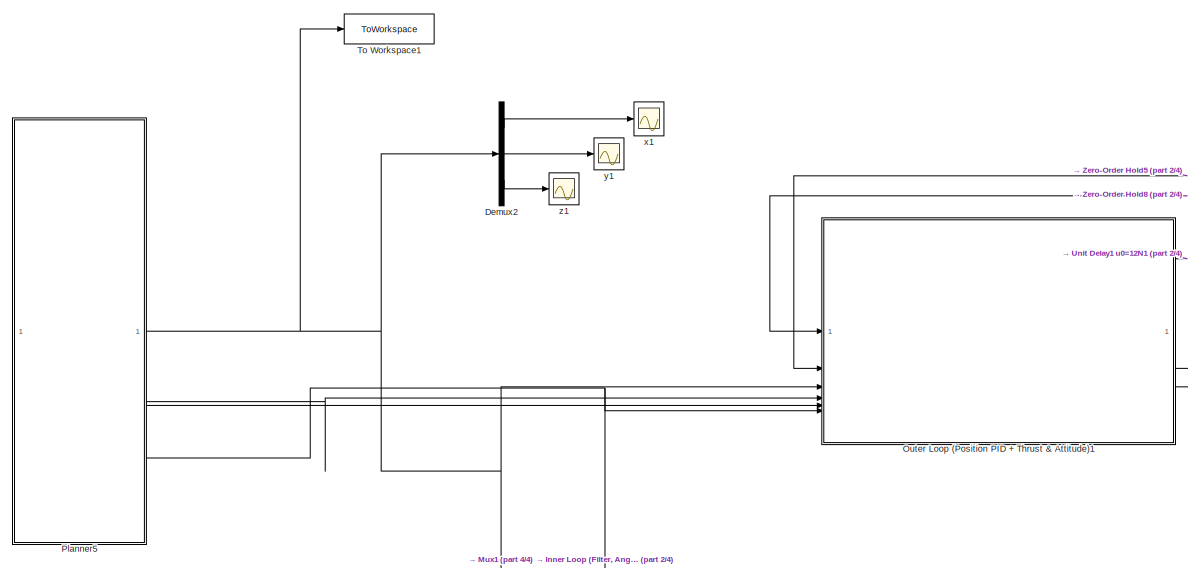
[diagram: root canvas - part 1/4, top left region]
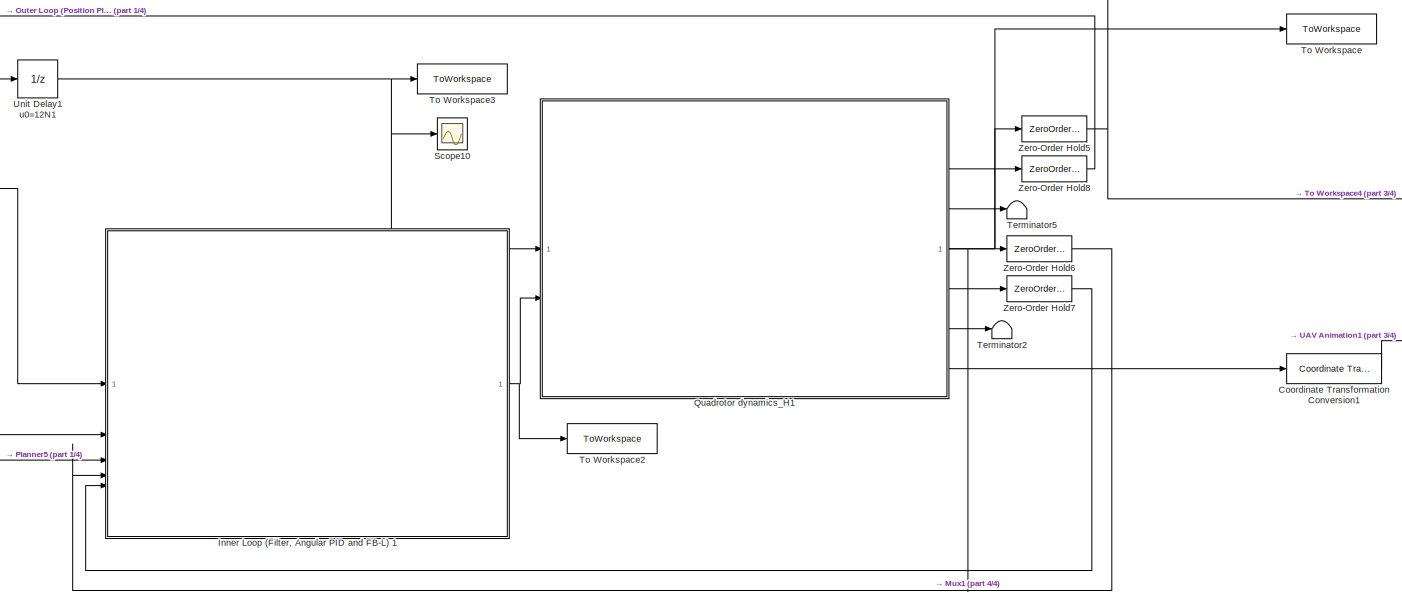
[diagram: root canvas - part 2/4, central region]
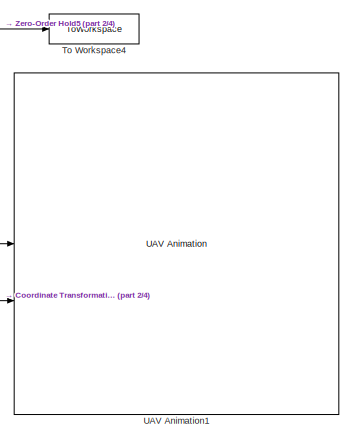
[diagram: root canvas - part 3/4, middle right region]
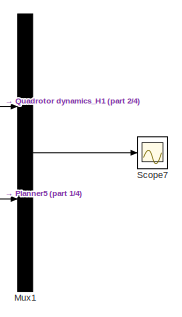
[diagram: root canvas - part 4/4, bottom right region]
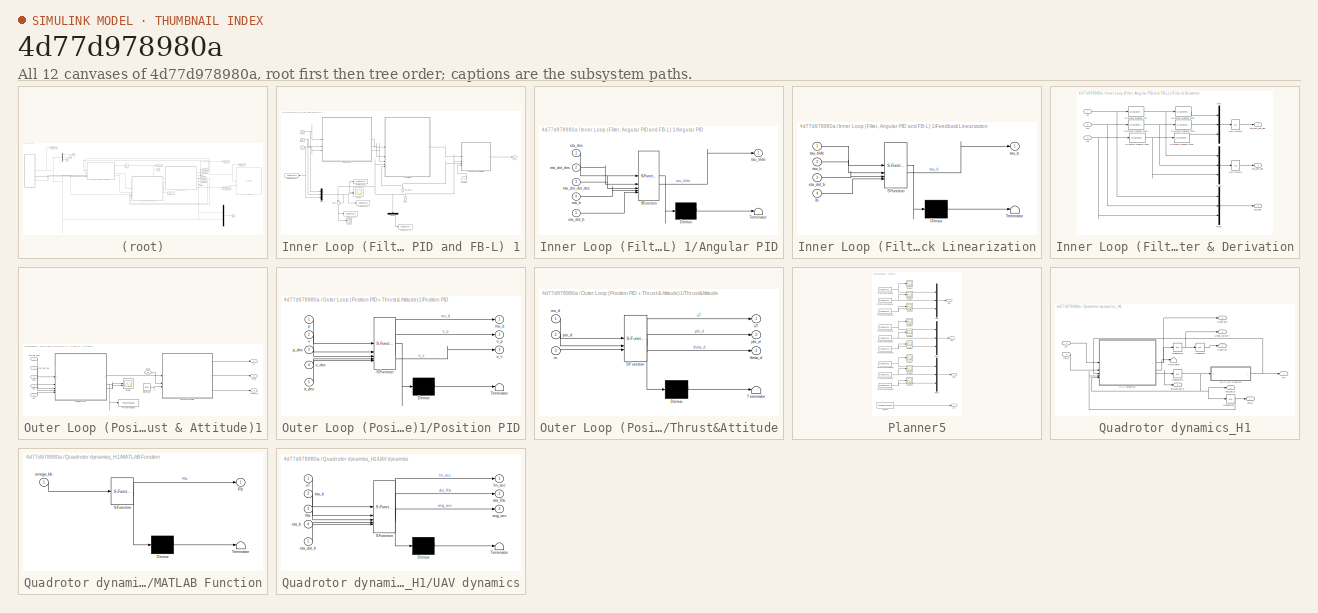
[diagram: thumbnail index - all 12 canvases of the model, root first then tree order]
MODEL slx_4d77d978980a
KIND model
CONFIG AbsTol = auto
CONFIG EnableMultiTasking = off
CONFIG FixedStep = auto
CONFIG InitFcn = %% INITIALIZATION\nrun('LOAD_HIERARCHICAL.m');\n%% UAV PARAMETERS\nmass = 0.85;\nIb = diag([2.5 2.1 4.3])*10^-2;\n%% SAMPLING TIME\nTs=0.01;\n\n\n\n
CONFIG MaxStep = auto
CONFIG MinStep = auto
CONFIG RelTol = 1e-3
CONFIG SampleTimeConstraint = Unconstrained
CONFIG SolverName = VariableStepAuto
CONFIG StartTime = 0.0
CONFIG StopTime = T
BLOCK [Reference] Coordinate Transformation Conversion1  REF=robotcorelib/Coordinate Transformation Conversion
  SourceBlock = robotcorelib/Coordinate Transformation Conversion
  SourceType = robotics.slcore.internal.block.CoordinateTransformationConversion
BLOCK [Demux] Demux2
  Outputs = 3
BLOCK [SubSystem] Inner Loop (Filter, Angular PID and FB-L) 1
BLOCK [SubSystem] Inner Loop (Filter, Angular PID and FB-L) 1/Angular PID
  ErrorFcn = Stateflow.Translate.translate
  LibrarySourceBlock = simulink/User-Defined\nFunctions/MATLAB Function
  PermitHierarchicalResolution = ExplicitOnly
  SFBlockType = MATLAB Function
  TreatAsAtomicUnit = on
BLOCK [Demux] Inner Loop (Filter, Angular PID and FB-L) 1/Angular PID/ Demux 
  Outputs = 1
BLOCK [S-Function] Inner Loop (Filter, Angular PID and FB-L) 1/Angular PID/ SFunction 
  EnableBusSupport = on
  FunctionName = sf_sfun
  PortCounts = [5 2]
  SFcnIsStateOwnerBlock = off
  SFunctionDeploymentMode = off
  Tag = Stateflow S-Function 9
BLOCK [Terminator] Inner Loop (Filter, Angular PID and FB-L) 1/Angular PID/ Terminator 
BLOCK [Inport] Inner Loop (Filter, Angular PID and FB-L) 1/Angular PID/eta_b
  Port = 4
BLOCK [Inport] Inner Loop (Filter, Angular PID and FB-L) 1/Angular PID/eta_des
BLOCK [Inport] Inner Loop (Filter, Angular PID and FB-L) 1/Angular PID/eta_dot_b
  Port = 5
BLOCK [Inport] Inner Loop (Filter, Angular PID and FB-L) 1/Angular PID/eta_dot_des
  Port = 2
BLOCK [Inport] Inner Loop (Filter, Angular PID and FB-L) 1/Angular PID/eta_dot_dot_des
  Port = 3
BLOCK [Outport] Inner Loop (Filter, Angular PID and FB-L) 1/Angular PID/tau_tilde
BLOCK [Constant] Inner Loop (Filter, Angular PID and FB-L) 1/Constant
  Value = Ib
BLOCK [Demux] Inner Loop (Filter, Angular PID and FB-L) 1/Demux
  NameLocation = left
  Outputs = 3
BLOCK [SubSystem] Inner Loop (Filter, Angular PID and FB-L) 1/Feedback Linearization
  ErrorFcn = Stateflow.Translate.translate
  LibrarySourceBlock = simulink/User-Defined\nFunctions/MATLAB Function
  PermitHierarchicalResolution = ExplicitOnly
  SFBlockType = MATLAB Function
  TreatAsAtomicUnit = on
BLOCK [Demux] Inner Loop (Filter, Angular PID and FB-L) 1/Feedback Linearization/ Demux 
  Outputs = 1
BLOCK [S-Function] Inner Loop (Filter, Angular PID and FB-L) 1/Feedback Linearization/ SFunction 
  EnableBusSupport = on
  FunctionName = sf_sfun
  PortCounts = [4 2]
  SFcnIsStateOwnerBlock = off
  SFunctionDeploymentMode = off
  Tag = Stateflow S-Function 10
BLOCK [Terminator] Inner Loop (Filter, Angular PID and FB-L) 1/Feedback Linearization/ Terminator 
BLOCK [Inport] Inner Loop (Filter, Angular PID and FB-L) 1/Feedback Linearization/Ib
  Port = 4
BLOCK [Inport] Inner Loop (Filter, Angular PID and FB-L) 1/Feedback Linearization/eta_b
  Port = 2
BLOCK [Inport] Inner Loop (Filter, Angular PID and FB-L) 1/Feedback Linearization/eta_dot_b
  Port = 3
BLOCK [Outport] Inner Loop (Filter, Angular PID and FB-L) 1/Feedback Linearization/tau_b
BLOCK [Inport] Inner Loop (Filter, Angular PID and FB-L) 1/Feedback Linearization/tau_tilde
BLOCK [SubSystem] Inner Loop (Filter, Angular PID and FB-L) 1/Filter & Derivation
BLOCK [DiscreteTransferFcn] Inner Loop (Filter, Angular PID and FB-L) 1/Filter & Derivation/Discrete Transfer Fcn
  Denominator = [Ts 0]
  InputPortMap = u0
  Numerator = [1 -1]
  SampleTime = Ts
BLOCK [DiscreteTransferFcn] Inner Loop (Filter, Angular PID and FB-L) 1/Filter & Derivation/Discrete Transfer Fcn1
  Denominator = [Ts 0]
  InputPortMap = u0
  Numerator = [1 -1]
  SampleTime = Ts
BLOCK [DiscreteTransferFcn] Inner Loop (Filter, Angular PID and FB-L) 1/Filter & Derivation/Discrete Transfer Fcn2
  Denominator = [Ts 0]
  InputPortMap = u0
  Numerator = [1 -1]
  SampleTime = Ts
BLOCK [DiscreteTransferFcn] Inner Loop (Filter, Angular PID and FB-L) 1/Filter & Derivation/Discrete Transfer Fcn3
  Denominator = [Ts 0]
  InputPortMap = u0
  Numerator = [1 -1]
  SampleTime = Ts
BLOCK [DiscreteTransferFcn] Inner Loop (Filter, Angular PID and FB-L) 1/Filter & Derivation/Discrete Transfer Fcn4
  Denominator = [Ts 0]
  InputPortMap = u0
  Numerator = [1 -1]
  SampleTime = Ts
BLOCK [DiscreteTransferFcn] Inner Loop (Filter, Angular PID and FB-L) 1/Filter & Derivation/Discrete Transfer Fcn5
  Denominator = [Ts 0]
  InputPortMap = u0
  Numerator = [1 -1]
  SampleTime = Ts
BLOCK [Inport] Inner Loop (Filter, Angular PID and FB-L) 1/Filter & Derivation/In1
BLOCK [Inport] Inner Loop (Filter, Angular PID and FB-L) 1/Filter & Derivation/In2
  Port = 2
BLOCK [Inport] Inner Loop (Filter, Angular PID and FB-L) 1/Filter & Derivation/In3
  Port = 3
BLOCK [Mux] Inner Loop (Filter, Angular PID and FB-L) 1/Filter & Derivation/Mux
  DisplayOption = bar
  Inputs = 3
BLOCK [Mux] Inner Loop (Filter, Angular PID and FB-L) 1/Filter & Derivation/Mux1
  DisplayOption = bar
  Inputs = 3
BLOCK [Mux] Inner Loop (Filter, Angular PID and FB-L) 1/Filter & Derivation/Mux2
  DisplayOption = bar
  Inputs = 3
BLOCK [UnitDelay] Inner Loop (Filter, Angular PID and FB-L) 1/Filter & Derivation/Unit Delay1
  InitialCondition = [0 0 0]
  NameLocation = top
  SampleTime = Ts
BLOCK [UnitDelay] Inner Loop (Filter, Angular PID and FB-L) 1/Filter & Derivation/Unit Delay2
  InitialCondition = [0 0 0]
  NameLocation = top
  SampleTime = Ts
BLOCK [Outport] Inner Loop (Filter, Angular PID and FB-L) 1/Filter & Derivation/eta_des
BLOCK [Outport] Inner Loop (Filter, Angular PID and FB-L) 1/Filter & Derivation/eta_dot_des
  Port = 2
BLOCK [Outport] Inner Loop (Filter, Angular PID and FB-L) 1/Filter & Derivation/eta_dot_dot_des
  Port = 3
BLOCK [Mux] Inner Loop (Filter, Angular PID and FB-L) 1/Mux
  DisplayOption = bar
  Inputs = 3
BLOCK [Scope] Inner Loop (Filter, Angular PID and FB-L) 1/Scope
  Floating = off
  NumInputPorts = 2
  ScopeSpecificationString = Simulink.scopes.TimeScopeBlockCfg('CurrentConfiguration', extmgr.ConfigurationSet(extmgr.Configuration('Core','General UI',true),extmgr.Configuration('Core','Source UI',true),extmgr.Configuration('Sources','WiredSimulink',true,'DataLoggingVariableName','ScopeData2'),extmgr.Configuration('Visuals','Time Domain',true,'SerializedDisplays',{struct('MinYLimReal','-1.24635','MaxYLimReal','3.98889','YLab...<+1599ch>
BLOCK [Scope] Inner Loop (Filter, Angular PID and FB-L) 1/Scope1
  Floating = off
  NumInputPorts = 1
  ScopeSpecificationString = Simulink.scopes.TimeScopeBlockCfg('CurrentConfiguration', extmgr.ConfigurationSet(extmgr.Configuration('Core','General UI',true),extmgr.Configuration('Core','Source UI',true),extmgr.Configuration('Sources','WiredSimulink',true,'DataLoggingVariableName','ScopeData1'),extmgr.Configuration('Visuals','Time Domain',true,'SerializedDisplays',{struct('MinYLimReal','-0.04771','MaxYLimReal','0.10449','YLab...<+1380ch>
BLOCK [Sum] Inner Loop (Filter, Angular PID and FB-L) 1/Sum
  Inputs = |+-
  NameLocation = left
BLOCK [ToWorkspace] Inner Loop (Filter, Angular PID and FB-L) 1/To Workspace
  FixptAsFi = on
  MaxDataPoints = inf
  SampleTime = -1
  SaveFormat = Structure With Time
  VariableName = eta_d
BLOCK [ToWorkspace] Inner Loop (Filter, Angular PID and FB-L) 1/To Workspace1
  FixptAsFi = on
  MaxDataPoints = inf
  SampleTime = -1
  SaveFormat = Structure With Time
  VariableName = eta
BLOCK [ToWorkspace] Inner Loop (Filter, Angular PID and FB-L) 1/To Workspace2
  FixptAsFi = on
  MaxDataPoints = inf
  SampleTime = -1
  SaveFormat = Structure With Time
  VariableName = err_R
BLOCK [ToWorkspace] Inner Loop (Filter, Angular PID and FB-L) 1/To Workspace3
  FixptAsFi = on
  MaxDataPoints = inf
  SampleTime = -1
  SaveFormat = Structure With Time
  VariableName = psi
BLOCK [ToWorkspace] Inner Loop (Filter, Angular PID and FB-L) 1/To Workspace4
  FixptAsFi = on
  MaxDataPoints = inf
  NameLocation = top
  SampleTime = -1
  SaveFormat = Structure With Time
  VariableName = psi_d
BLOCK [Inport] Inner Loop (Filter, Angular PID and FB-L) 1/eta_b
  NameLocation = right
  Port = 4
BLOCK [Inport] Inner Loop (Filter, Angular PID and FB-L) 1/eta_dot_b
  NameLocation = right
  Port = 5
BLOCK [Inport] Inner Loop (Filter, Angular PID and FB-L) 1/phi_d
BLOCK [Inport] Inner Loop (Filter, Angular PID and FB-L) 1/psi_d
  Port = 3
BLOCK [Outport] Inner Loop (Filter, Angular PID and FB-L) 1/tau_b
BLOCK [Inport] Inner Loop (Filter, Angular PID and FB-L) 1/theta_d
  Port = 2
BLOCK [Mux] Mux1
  DisplayOption = bar
  Inputs = 2
BLOCK [SubSystem] Outer Loop (Position PID + Thrust & Attitude)1
BLOCK [Constant] Outer Loop (Position PID + Thrust & Attitude)1/Constant
  Value = mass
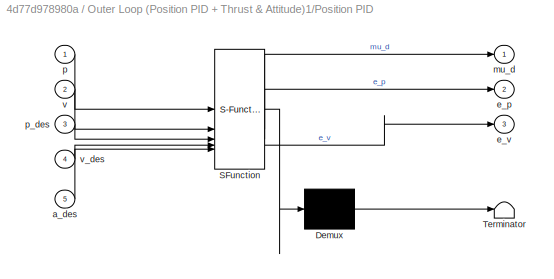
BLOCK [SubSystem] Outer Loop (Position PID + Thrust & Attitude)1/Position PID
  ErrorFcn = Stateflow.Translate.translate
  LibrarySourceBlock = simulink/User-Defined\nFunctions/MATLAB Function
  PermitHierarchicalResolution = ExplicitOnly
  SFBlockType = MATLAB Function
  TreatAsAtomicUnit = on
BLOCK [Demux] Outer Loop (Position PID + Thrust & Attitude)1/Position PID/ Demux 
  Outputs = 1
BLOCK [S-Function] Outer Loop (Position PID + Thrust & Attitude)1/Position PID/ SFunction 
  EnableBusSupport = on
  FunctionName = sf_sfun
  PortCounts = [5 4]
  SFcnIsStateOwnerBlock = off
  SFunctionDeploymentMode = off
  Tag = Stateflow S-Function 11
BLOCK [Terminator] Outer Loop (Position PID + Thrust & Attitude)1/Position PID/ Terminator 
BLOCK [Inport] Outer Loop (Position PID + Thrust & Attitude)1/Position PID/a_des
  Port = 5
BLOCK [Outport] Outer Loop (Position PID + Thrust & Attitude)1/Position PID/e_p
  Port = 2
BLOCK [Outport] Outer Loop (Position PID + Thrust & Attitude)1/Position PID/e_v
  Port = 3
BLOCK [Outport] Outer Loop (Position PID + Thrust & Attitude)1/Position PID/mu_d
BLOCK [Inport] Outer Loop (Position PID + Thrust & Attitude)1/Position PID/p
BLOCK [Inport] Outer Loop (Position PID + Thrust & Attitude)1/Position PID/p_des
  Port = 3
BLOCK [Inport] Outer Loop (Position PID + Thrust & Attitude)1/Position PID/v
  Port = 2
BLOCK [Inport] Outer Loop (Position PID + Thrust & Attitude)1/Position PID/v_des
  Port = 4
BLOCK [Scope] Outer Loop (Position PID + Thrust & Attitude)1/Scope
  Floating = off
  NumInputPorts = 2
  ScopeSpecificationString = Simulink.scopes.TimeScopeBlockCfg('CurrentConfiguration', extmgr.ConfigurationSet(extmgr.Configuration('Core','General UI',true),extmgr.Configuration('Core','Source UI',true),extmgr.Configuration('Sources','WiredSimulink',true,'DataLoggingVariableName','ScopeData11'),extmgr.Configuration('Visuals','Time Domain',true,'SerializedDisplays',{struct('MinYLimReal','-2.46','MaxYLimReal','1.69194','YLabel...<+1656ch>
BLOCK [SubSystem] Outer Loop (Position PID + Thrust & Attitude)1/Thrust&Attitude
  ErrorFcn = Stateflow.Translate.translate
  LibrarySourceBlock = simulink/User-Defined\nFunctions/MATLAB Function
  PermitHierarchicalResolution = ExplicitOnly
  SFBlockType = MATLAB Function
  TreatAsAtomicUnit = on
BLOCK [Demux] Outer Loop (Position PID + Thrust & Attitude)1/Thrust&Attitude/ Demux 
  Outputs = 1
BLOCK [S-Function] Outer Loop (Position PID + Thrust & Attitude)1/Thrust&Attitude/ SFunction 
  EnableBusSupport = on
  FunctionName = sf_sfun
  PortCounts = [3 4]
  SFcnIsStateOwnerBlock = off
  SFunctionDeploymentMode = off
  Tag = Stateflow S-Function 12
BLOCK [Terminator] Outer Loop (Position PID + Thrust & Attitude)1/Thrust&Attitude/ Terminator 
BLOCK [Inport] Outer Loop (Position PID + Thrust & Attitude)1/Thrust&Attitude/m
  Port = 3
BLOCK [Inport] Outer Loop (Position PID + Thrust & Attitude)1/Thrust&Attitude/mu_d
BLOCK [Outport] Outer Loop (Position PID + Thrust & Attitude)1/Thrust&Attitude/phi_d
  Port = 2
BLOCK [Inport] Outer Loop (Position PID + Thrust & Attitude)1/Thrust&Attitude/psi_d
  Port = 2
BLOCK [Outport] Outer Loop (Position PID + Thrust & Attitude)1/Thrust&Attitude/theta_d
  Port = 3
BLOCK [Outport] Outer Loop (Position PID + Thrust & Attitude)1/Thrust&Attitude/uT
BLOCK [ToWorkspace] Outer Loop (Position PID + Thrust & Attitude)1/To Workspace
  FixptAsFi = on
  MaxDataPoints = inf
  SampleTime = -1
  SaveFormat = Structure With Time
  VariableName = err_p
BLOCK [Inport] Outer Loop (Position PID + Thrust & Attitude)1/acc
  Port = 5
BLOCK [Inport] Outer Loop (Position PID + Thrust & Attitude)1/current_pos
  Port = 2
BLOCK [Inport] Outer Loop (Position PID + Thrust & Attitude)1/current_vel
BLOCK [Outport] Outer Loop (Position PID + Thrust & Attitude)1/phi_d
  Port = 2
BLOCK [Inport] Outer Loop (Position PID + Thrust & Attitude)1/pos
  Port = 3
BLOCK [Inport] Outer Loop (Position PID + Thrust & Attitude)1/psi_d
  Port = 6
BLOCK [Outport] Outer Loop (Position PID + Thrust & Attitude)1/theta_d
  Port = 3
BLOCK [Outport] Outer Loop (Position PID + Thrust & Attitude)1/uT
BLOCK [Inport] Outer Loop (Position PID + Thrust & Attitude)1/vel
  Port = 4
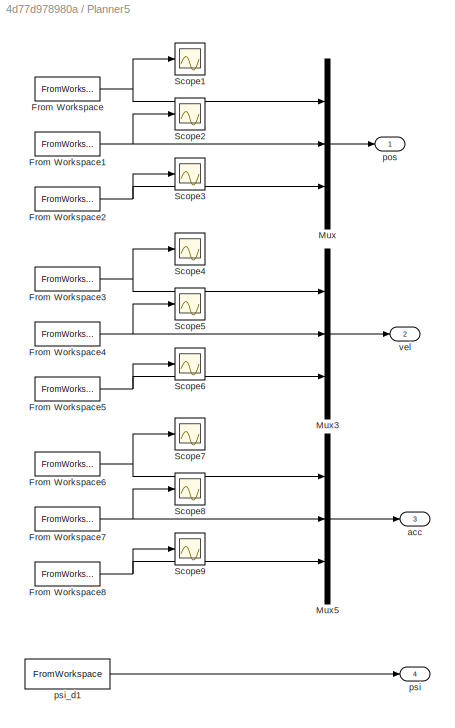
BLOCK [SubSystem] Planner5
BLOCK [FromWorkspace] Planner5/From Workspace
  VariableName = [new_tt' xx_new']
BLOCK [FromWorkspace] Planner5/From Workspace1
  VariableName = [new_tt' yy_new']
BLOCK [FromWorkspace] Planner5/From Workspace2
  VariableName = [new_tt' zz_new']
BLOCK [FromWorkspace] Planner5/From Workspace3
  VariableName = [new_tt' xv_new']
BLOCK [FromWorkspace] Planner5/From Workspace4
  VariableName = [new_tt' yv_new']
BLOCK [FromWorkspace] Planner5/From Workspace5
  VariableName = [new_tt' zv_new']
BLOCK [FromWorkspace] Planner5/From Workspace6
  VariableName = [new_tt' xa_new']
BLOCK [FromWorkspace] Planner5/From Workspace7
  VariableName = [new_tt' ya_new']
BLOCK [FromWorkspace] Planner5/From Workspace8
  VariableName = [new_tt' za_new']
BLOCK [Mux] Planner5/Mux
  DisplayOption = bar
  Inputs = 3
BLOCK [Mux] Planner5/Mux3
  DisplayOption = bar
  Inputs = 3
BLOCK [Mux] Planner5/Mux5
  DisplayOption = bar
  Inputs = 3
BLOCK [Scope] Planner5/Scope1
  Floating = off
  NumInputPorts = 1
  ScopeSpecificationString = Simulink.scopes.TimeScopeBlockCfg('CurrentConfiguration', extmgr.ConfigurationSet(extmgr.Configuration('Core','General UI',true),extmgr.Configuration('Core','Source UI',true),extmgr.Configuration('Sources','WiredSimulink',true,'DataLoggingVariableName','ScopeData1'),extmgr.Configuration('Visuals','Time Domain',true,'SerializedDisplays',{struct('MinYLimReal','-7.8746','MaxYLimReal','11.99382','YLab...<+1375ch>
BLOCK [Scope] Planner5/Scope2
  Floating = off
  NumInputPorts = 1
  ScopeSpecificationString = Simulink.scopes.TimeScopeBlockCfg('CurrentConfiguration', extmgr.ConfigurationSet(extmgr.Configuration('Core','General UI',true),extmgr.Configuration('Core','Source UI',true),extmgr.Configuration('Sources','WiredSimulink',true,'DataLoggingVariableName','ScopeData2'),extmgr.Configuration('Visuals','Time Domain',true,'SerializedDisplays',{struct('MinYLimReal','-7.8746','MaxYLimReal','11.99382','YLab...<+1375ch>
BLOCK [Scope] Planner5/Scope3
  Floating = off
  NumInputPorts = 1
  ScopeSpecificationString = Simulink.scopes.TimeScopeBlockCfg('CurrentConfiguration', extmgr.ConfigurationSet(extmgr.Configuration('Core','General UI',true),extmgr.Configuration('Core','Source UI',true),extmgr.Configuration('Sources','WiredSimulink',true,'DataLoggingVariableName','ScopeData3'),extmgr.Configuration('Visuals','Time Domain',true,'SerializedDisplays',{struct('MinYLimReal','-7.8746','MaxYLimReal','11.99382','YLab...<+1375ch>
BLOCK [Scope] Planner5/Scope4
  Floating = off
  NumInputPorts = 1
  ScopeSpecificationString = Simulink.scopes.TimeScopeBlockCfg('CurrentConfiguration', extmgr.ConfigurationSet(extmgr.Configuration('Core','General UI',true),extmgr.Configuration('Core','Source UI',true),extmgr.Configuration('Sources','WiredSimulink',true,'DataLoggingVariableName','ScopeData4'),extmgr.Configuration('Visuals','Time Domain',true,'SerializedDisplays',{struct('MinYLimReal','-7.8746','MaxYLimReal','11.99382','YLab...<+1375ch>
BLOCK [Scope] Planner5/Scope5
  Floating = off
  NumInputPorts = 1
  ScopeSpecificationString = Simulink.scopes.TimeScopeBlockCfg('CurrentConfiguration', extmgr.ConfigurationSet(extmgr.Configuration('Core','General UI',true),extmgr.Configuration('Core','Source UI',true),extmgr.Configuration('Sources','WiredSimulink',true,'DataLoggingVariableName','ScopeData5'),extmgr.Configuration('Visuals','Time Domain',true,'SerializedDisplays',{struct('MinYLimReal','-7.8746','MaxYLimReal','11.99382','YLab...<+1375ch>
BLOCK [Scope] Planner5/Scope6
  Floating = off
  NumInputPorts = 1
  ScopeSpecificationString = Simulink.scopes.TimeScopeBlockCfg('CurrentConfiguration', extmgr.ConfigurationSet(extmgr.Configuration('Core','General UI',true),extmgr.Configuration('Core','Source UI',true),extmgr.Configuration('Sources','WiredSimulink',true,'DataLoggingVariableName','ScopeData6'),extmgr.Configuration('Visuals','Time Domain',true,'SerializedDisplays',{struct('MinYLimReal','-7.8746','MaxYLimReal','11.99382','YLab...<+1375ch>
BLOCK [Scope] Planner5/Scope7
  Floating = off
  NumInputPorts = 1
  ScopeSpecificationString = Simulink.scopes.TimeScopeBlockCfg('CurrentConfiguration', extmgr.ConfigurationSet(extmgr.Configuration('Core','General UI',true),extmgr.Configuration('Core','Source UI',true),extmgr.Configuration('Sources','WiredSimulink',true,'DataLoggingVariableName','ScopeData7'),extmgr.Configuration('Visuals','Time Domain',true,'SerializedDisplays',{struct('MinYLimReal','-7.8746','MaxYLimReal','11.99382','YLab...<+1375ch>
BLOCK [Scope] Planner5/Scope8
  Floating = off
  NumInputPorts = 1
  ScopeSpecificationString = Simulink.scopes.TimeScopeBlockCfg('CurrentConfiguration', extmgr.ConfigurationSet(extmgr.Configuration('Core','General UI',true),extmgr.Configuration('Core','Source UI',true),extmgr.Configuration('Sources','WiredSimulink',true,'DataLoggingVariableName','ScopeData8'),extmgr.Configuration('Visuals','Time Domain',true,'SerializedDisplays',{struct('MinYLimReal','-7.8746','MaxYLimReal','11.99382','YLab...<+1375ch>
BLOCK [Scope] Planner5/Scope9
  Floating = off
  NumInputPorts = 1
  ScopeSpecificationString = Simulink.scopes.TimeScopeBlockCfg('CurrentConfiguration', extmgr.ConfigurationSet(extmgr.Configuration('Core','General UI',true),extmgr.Configuration('Core','Source UI',true),extmgr.Configuration('Sources','WiredSimulink',true,'DataLoggingVariableName','ScopeData9'),extmgr.Configuration('Visuals','Time Domain',true,'SerializedDisplays',{struct('MinYLimReal','-7.8746','MaxYLimReal','11.99382','YLab...<+1375ch>
BLOCK [Outport] Planner5/acc
  Port = 3
BLOCK [Outport] Planner5/pos
BLOCK [Outport] Planner5/psi
  Port = 4
BLOCK [FromWorkspace] Planner5/psi_d1
  SampleTime = Ts
  VariableName = [new_tt' PSI_new']
BLOCK [Outport] Planner5/vel
  Port = 2
BLOCK [SubSystem] Quadrotor dynamics_H1
BLOCK [Integrator] Quadrotor dynamics_H1/Integrator
  InitialCondition = [-1 -1.2 2]
BLOCK [Integrator] Quadrotor dynamics_H1/Integrator1
  InitialCondition = [0 0 0]
BLOCK [Integrator] Quadrotor dynamics_H1/Integrator2
  InitialCondition = [0 0 0]
BLOCK [Integrator] Quadrotor dynamics_H1/Integrator3
  InitialCondition = [0 0 0]
BLOCK [Outport] Quadrotor dynamics_H1/Linear_acc
  Port = 3
BLOCK [Outport] Quadrotor dynamics_H1/Linear_velocity
  Port = 2
BLOCK [SubSystem] Quadrotor dynamics_H1/MATLAB Function
  ErrorFcn = Stateflow.Translate.translate
  PermitHierarchicalResolution = ExplicitOnly
  SFBlockType = MATLAB Function
  TreatAsAtomicUnit = on
BLOCK [Demux] Quadrotor dynamics_H1/MATLAB Function/ Demux 
  Outputs = 1
BLOCK [S-Function] Quadrotor dynamics_H1/MATLAB Function/ SFunction 
  EnableBusSupport = on
  FunctionName = sf_sfun
  PortCounts = [1 2]
  SFcnIsStateOwnerBlock = off
  SFunctionDeploymentMode = off
  Tag = Stateflow S-Function 13
BLOCK [Terminator] Quadrotor dynamics_H1/MATLAB Function/ Terminator 
BLOCK [Outport] Quadrotor dynamics_H1/MATLAB Function/Rb
BLOCK [Inport] Quadrotor dynamics_H1/MATLAB Function/omega_bb
BLOCK [Outport] Quadrotor dynamics_H1/Position
BLOCK [Outport] Quadrotor dynamics_H1/Rb
  Port = 7
BLOCK [Terminator] Quadrotor dynamics_H1/Terminator
BLOCK [SubSystem] Quadrotor dynamics_H1/UAV dynamics
  ErrorFcn = Stateflow.Translate.translate
  PermitHierarchicalResolution = ExplicitOnly
  SFBlockType = MATLAB Function
  TreatAsAtomicUnit = on
BLOCK [Demux] Quadrotor dynamics_H1/UAV dynamics/ Demux 
  Outputs = 1
BLOCK [S-Function] Quadrotor dynamics_H1/UAV dynamics/ SFunction 
  EnableBusSupport = on
  FunctionName = sf_sfun
  Parameters = Ib,mass
  PortCounts = [5 4]
  SFcnIsStateOwnerBlock = off
  SFunctionDeploymentMode = off
  Tag = Stateflow S-Function 14
BLOCK [Terminator] Quadrotor dynamics_H1/UAV dynamics/ Terminator 
BLOCK [Inport] Quadrotor dynamics_H1/UAV dynamics/Rb
  Port = 3
BLOCK [Outport] Quadrotor dynamics_H1/UAV dynamics/ang_acc
  Port = 3
BLOCK [Outport] Quadrotor dynamics_H1/UAV dynamics/dot_Rb
  Port = 2
BLOCK [Inport] Quadrotor dynamics_H1/UAV dynamics/eta_b
  Port = 4
BLOCK [Inport] Quadrotor dynamics_H1/UAV dynamics/eta_dot_b
  Port = 5
BLOCK [Outport] Quadrotor dynamics_H1/UAV dynamics/lin_acc
BLOCK [Inport] Quadrotor dynamics_H1/UAV dynamics/tau_b
  Port = 2
BLOCK [Inport] Quadrotor dynamics_H1/UAV dynamics/uT
BLOCK [Outport] Quadrotor dynamics_H1/eta_b
  Port = 4
BLOCK [Outport] Quadrotor dynamics_H1/eta_dot_b
  Port = 5
BLOCK [Outport] Quadrotor dynamics_H1/eta_dot_dot_b
  Port = 6
BLOCK [Inport] Quadrotor dynamics_H1/tau_b
  Port = 2
BLOCK [Inport] Quadrotor dynamics_H1/uT
BLOCK [Scope] Scope10
  Floating = off
  NumInputPorts = 1
  ScopeSpecificationString = Simulink.scopes.TimeScopeBlockCfg('CurrentConfiguration', extmgr.ConfigurationSet(extmgr.Configuration('Core','General UI',true),extmgr.Configuration('Core','Source UI',true),extmgr.Configuration('Sources','WiredSimulink',true,'DataLoggingVariableName','ScopeData1'),extmgr.Configuration('Visuals','Time Domain',true,'SerializedDisplays',{struct('MinYLimReal','6.72185','MaxYLimReal','13.2314','YLabe...<+1376ch>
BLOCK [Scope] Scope7
  Floating = off
  NumInputPorts = 1
  ScopeSpecificationString = Simulink.scopes.TimeScopeBlockCfg('CurrentConfiguration', extmgr.ConfigurationSet(extmgr.Configuration('Core','General UI',true),extmgr.Configuration('Core','Source UI',true),extmgr.Configuration('Sources','WiredSimulink',true,'DataLoggingVariableName','ScopeData2'),extmgr.Configuration('Visuals','Time Domain',true,'SerializedDisplays',{struct('MinYLimReal','-8.59308','MaxYLimReal','12.07582','YLa...<+1723ch>
BLOCK [Terminator] Terminator2
BLOCK [Terminator] Terminator5
BLOCK [ToWorkspace] To Workspace
  FixptAsFi = on
  MaxDataPoints = inf
  SampleTime = -1
  SaveFormat = Structure With Time
  VariableName = pos
BLOCK [ToWorkspace] To Workspace1
  FixptAsFi = on
  MaxDataPoints = inf
  SampleTime = -1
  SaveFormat = Structure With Time
  VariableName = pos_d
BLOCK [ToWorkspace] To Workspace2
  FixptAsFi = on
  MaxDataPoints = inf
  SampleTime = -1
  SaveFormat = Structure With Time
  VariableName = taub
BLOCK [ToWorkspace] To Workspace3
  FixptAsFi = on
  MaxDataPoints = inf
  SampleTime = -1
  SaveFormat = Structure With Time
  VariableName = uT
BLOCK [ToWorkspace] To Workspace4
  FixptAsFi = on
  MaxDataPoints = inf
  SampleTime = -1
  SaveFormat = Structure With Time
  VariableName = traj
BLOCK [Reference] UAV Animation1  REF=uavutilslib/UAV Animation
  SourceBlock = uavutilslib/UAV Animation
  SourceType = uav.sluav.internal.system.UAVAnimation
BLOCK [UnitDelay] Unit Delay1 u0=12N1
  InitialCondition = 11.772
  SampleTime = Ts
BLOCK [ZeroOrderHold] Zero-Order Hold5
  SampleTime = Ts
BLOCK [ZeroOrderHold] Zero-Order Hold6
  SampleTime = Ts
BLOCK [ZeroOrderHold] Zero-Order Hold7
  SampleTime = Ts
BLOCK [ZeroOrderHold] Zero-Order Hold8
  SampleTime = Ts
BLOCK [Scope] x1
  Floating = off
  NumInputPorts = 1
  ScopeSpecificationString = Simulink.scopes.TimeScopeBlockCfg('CurrentConfiguration', extmgr.ConfigurationSet(extmgr.Configuration('Core','General UI',true),extmgr.Configuration('Core','Source UI',true),extmgr.Configuration('Sources','WiredSimulink',true,'DataLoggingVariableName','ScopeData3'),extmgr.Configuration('Visuals','Time Domain',true,'SerializedDisplays',{struct('MinYLimReal','-1.24225','MaxYLimReal','6.47492','YLab...<+1441ch>
BLOCK [Scope] y1
  Floating = off
  NumInputPorts = 1
  ScopeSpecificationString = Simulink.scopes.TimeScopeBlockCfg('CurrentConfiguration', extmgr.ConfigurationSet(extmgr.Configuration('Core','General UI',true),extmgr.Configuration('Core','Source UI',true),extmgr.Configuration('Sources','WiredSimulink',true,'DataLoggingVariableName','ScopeData4'),extmgr.Configuration('Visuals','Time Domain',true,'SerializedDisplays',{struct('MinYLimReal','-8.54921','MaxYLimReal','8.80541','YLab...<+1367ch>
BLOCK [Scope] z1
  Floating = off
  NumInputPorts = 1
  ScopeSpecificationString = Simulink.scopes.TimeScopeBlockCfg('CurrentConfiguration', extmgr.ConfigurationSet(extmgr.Configuration('Core','General UI',true),extmgr.Configuration('Core','Source UI',true),extmgr.Configuration('Sources','WiredSimulink',true,'DataLoggingVariableName','ScopeData5'),extmgr.Configuration('Visuals','Time Domain',true,'SerializedDisplays',{struct('MinYLimReal','0.86925','MaxYLimReal','2.12838','YLabe...<+1395ch>
LINE Coordinate Transformation Conversion1:1 -> UAV Animation1:2
LINE Demux2:1 -> x1:1
LINE Demux2:2 -> y1:1
LINE Demux2:3 -> z1:1
LINE Inner Loop (Filter, Angular PID and FB-L) 1/Angular PID:1 -> Inner Loop (Filter, Angular PID and FB-L) 1/Feedback Linearization:1
LINE Inner Loop (Filter, Angular PID and FB-L) 1/Constant:1 -> Inner Loop (Filter, Angular PID and FB-L) 1/Feedback Linearization:4
LINE Inner Loop (Filter, Angular PID and FB-L) 1/Demux:3 -> Inner Loop (Filter, Angular PID and FB-L) 1/To Workspace3:1
LINE Inner Loop (Filter, Angular PID and FB-L) 1/Feedback Linearization:1 -> Inner Loop (Filter, Angular PID and FB-L) 1/tau_b:1
LINE Inner Loop (Filter, Angular PID and FB-L) 1/Filter & Derivation/Discrete Transfer Fcn1:1 -> Inner Loop (Filter, Angular PID and FB-L) 1/Filter & Derivation/Mux:1
LINE Inner Loop (Filter, Angular PID and FB-L) 1/Filter & Derivation/Discrete Transfer Fcn2:1 -> Inner Loop (Filter, Angular PID and FB-L) 1/Filter & Derivation/Mux:2
LINE Inner Loop (Filter, Angular PID and FB-L) 1/Filter & Derivation/Discrete Transfer Fcn3:1 -> Inner Loop (Filter, Angular PID and FB-L) 1/Filter & Derivation/Mux:3
NET Inner Loop (Filter, Angular PID and FB-L) 1/Filter & Derivation/Discrete Transfer Fcn4:1 -> Inner Loop (Filter, Angular PID and FB-L) 1/Filter & Derivation/Discrete Transfer Fcn2:1, Inner Loop (Filter, Angular PID and FB-L) 1/Filter & Derivation/Mux1:2
NET Inner Loop (Filter, Angular PID and FB-L) 1/Filter & Derivation/Discrete Transfer Fcn5:1 -> Inner Loop (Filter, Angular PID and FB-L) 1/Filter & Derivation/Discrete Transfer Fcn3:1, Inner Loop (Filter, Angular PID and FB-L) 1/Filter & Derivation/Mux1:3
NET Inner Loop (Filter, Angular PID and FB-L) 1/Filter & Derivation/Discrete Transfer Fcn:1 -> Inner Loop (Filter, Angular PID and FB-L) 1/Filter & Derivation/Discrete Transfer Fcn1:1, Inner Loop (Filter, Angular PID and FB-L) 1/Filter & Derivation/Mux1:1
NET Inner Loop (Filter, Angular PID and FB-L) 1/Filter & Derivation/In1:1 -> Inner Loop (Filter, Angular PID and FB-L) 1/Filter & Derivation/Discrete Transfer Fcn:1, Inner Loop (Filter, Angular PID and FB-L) 1/Filter & Derivation/Mux2:1
NET Inner Loop (Filter, Angular PID and FB-L) 1/Filter & Derivation/In2:1 -> Inner Loop (Filter, Angular PID and FB-L) 1/Filter & Derivation/Discrete Transfer Fcn4:1, Inner Loop (Filter, Angular PID and FB-L) 1/Filter & Derivation/Mux2:2
NET Inner Loop (Filter, Angular PID and FB-L) 1/Filter & Derivation/In3:1 -> Inner Loop (Filter, Angular PID and FB-L) 1/Filter & Derivation/Discrete Transfer Fcn5:1, Inner Loop (Filter, Angular PID and FB-L) 1/Filter & Derivation/Mux2:3
LINE Inner Loop (Filter, Angular PID and FB-L) 1/Filter & Derivation/Mux1:1 -> Inner Loop (Filter, Angular PID and FB-L) 1/Filter & Derivation/Unit Delay1:1
LINE Inner Loop (Filter, Angular PID and FB-L) 1/Filter & Derivation/Mux2:1 -> Inner Loop (Filter, Angular PID and FB-L) 1/Filter & Derivation/eta_des:1
LINE Inner Loop (Filter, Angular PID and FB-L) 1/Filter & Derivation/Mux:1 -> Inner Loop (Filter, Angular PID and FB-L) 1/Filter & Derivation/Unit Delay2:1
LINE Inner Loop (Filter, Angular PID and FB-L) 1/Filter & Derivation/Unit Delay1:1 -> Inner Loop (Filter, Angular PID and FB-L) 1/Filter & Derivation/eta_dot_des:1
LINE Inner Loop (Filter, Angular PID and FB-L) 1/Filter & Derivation/Unit Delay2:1 -> Inner Loop (Filter, Angular PID and FB-L) 1/Filter & Derivation/eta_dot_dot_des:1
LINE Inner Loop (Filter, Angular PID and FB-L) 1/Filter & Derivation:1 -> Inner Loop (Filter, Angular PID and FB-L) 1/Angular PID:1
LINE Inner Loop (Filter, Angular PID and FB-L) 1/Filter & Derivation:2 -> Inner Loop (Filter, Angular PID and FB-L) 1/Angular PID:2
LINE Inner Loop (Filter, Angular PID and FB-L) 1/Filter & Derivation:3 -> Inner Loop (Filter, Angular PID and FB-L) 1/Angular PID:3
NET Inner Loop (Filter, Angular PID and FB-L) 1/Mux:1 -> Inner Loop (Filter, Angular PID and FB-L) 1/Scope:2, Inner Loop (Filter, Angular PID and FB-L) 1/Sum:2, Inner Loop (Filter, Angular PID and FB-L) 1/To Workspace:1
NET Inner Loop (Filter, Angular PID and FB-L) 1/Sum:1 -> Inner Loop (Filter, Angular PID and FB-L) 1/Scope1:1, Inner Loop (Filter, Angular PID and FB-L) 1/To Workspace2:1
NET Inner Loop (Filter, Angular PID and FB-L) 1/eta_b:1 -> Inner Loop (Filter, Angular PID and FB-L) 1/Angular PID:4, Inner Loop (Filter, Angular PID and FB-L) 1/Demux:1, Inner Loop (Filter, Angular PID and FB-L) 1/Feedback Linearization:2, Inner Loop (Filter, Angular PID and FB-L) 1/Scope:1, Inner Loop (Filter, Angular PID and FB-L) 1/Sum:1, Inner Loop (Filter, Angular PID and FB-L) 1/To Workspace1:1
NET Inner Loop (Filter, Angular PID and FB-L) 1/eta_dot_b:1 -> Inner Loop (Filter, Angular PID and FB-L) 1/Angular PID:5, Inner Loop (Filter, Angular PID and FB-L) 1/Feedback Linearization:3
NET Inner Loop (Filter, Angular PID and FB-L) 1/phi_d:1 -> Inner Loop (Filter, Angular PID and FB-L) 1/Filter & Derivation:1, Inner Loop (Filter, Angular PID and FB-L) 1/Mux:1
NET Inner Loop (Filter, Angular PID and FB-L) 1/psi_d:1 -> Inner Loop (Filter, Angular PID and FB-L) 1/Filter & Derivation:3, Inner Loop (Filter, Angular PID and FB-L) 1/Mux:3, Inner Loop (Filter, Angular PID and FB-L) 1/To Workspace4:1
NET Inner Loop (Filter, Angular PID and FB-L) 1/theta_d:1 -> Inner Loop (Filter, Angular PID and FB-L) 1/Filter & Derivation:2, Inner Loop (Filter, Angular PID and FB-L) 1/Mux:2
NET Inner Loop (Filter, Angular PID and FB-L) 1:1 -> Quadrotor dynamics_H1:2, To Workspace2:1
LINE Mux1:1 -> Scope7:1
LINE Outer Loop (Position PID + Thrust & Attitude)1/Constant:1 -> Outer Loop (Position PID + Thrust & Attitude)1/Thrust&Attitude:3
LINE Outer Loop (Position PID + Thrust & Attitude)1/Position PID:1 -> Outer Loop (Position PID + Thrust & Attitude)1/Thrust&Attitude:1
NET Outer Loop (Position PID + Thrust & Attitude)1/Position PID:2 -> Outer Loop (Position PID + Thrust & Attitude)1/Scope:1, Outer Loop (Position PID + Thrust & Attitude)1/To Workspace:1
LINE Outer Loop (Position PID + Thrust & Attitude)1/Position PID:3 -> Outer Loop (Position PID + Thrust & Attitude)1/Scope:2
LINE Outer Loop (Position PID + Thrust & Attitude)1/Thrust&Attitude:1 -> Outer Loop (Position PID + Thrust & Attitude)1/uT:1
LINE Outer Loop (Position PID + Thrust & Attitude)1/Thrust&Attitude:2 -> Outer Loop (Position PID + Thrust & Attitude)1/phi_d:1
LINE Outer Loop (Position PID + Thrust & Attitude)1/Thrust&Attitude:3 -> Outer Loop (Position PID + Thrust & Attitude)1/theta_d:1
LINE Outer Loop (Position PID + Thrust & Attitude)1/acc:1 -> Outer Loop (Position PID + Thrust & Attitude)1/Position PID:5
LINE Outer Loop (Position PID + Thrust & Attitude)1/current_pos:1 -> Outer Loop (Position PID + Thrust & Attitude)1/Position PID:1
LINE Outer Loop (Position PID + Thrust & Attitude)1/current_vel:1 -> Outer Loop (Position PID + Thrust & Attitude)1/Position PID:2
LINE Outer Loop (Position PID + Thrust & Attitude)1/pos:1 -> Outer Loop (Position PID + Thrust & Attitude)1/Position PID:3
LINE Outer Loop (Position PID + Thrust & Attitude)1/psi_d:1 -> Outer Loop (Position PID + Thrust & Attitude)1/Thrust&Attitude:2
LINE Outer Loop (Position PID + Thrust & Attitude)1/vel:1 -> Outer Loop (Position PID + Thrust & Attitude)1/Position PID:4
LINE Outer Loop (Position PID + Thrust & Attitude)1:1 -> Unit Delay1 u0=12N1:1
LINE Outer Loop (Position PID + Thrust & Attitude)1:2 -> Inner Loop (Filter, Angular PID and FB-L) 1:1
LINE Outer Loop (Position PID + Thrust & Attitude)1:3 -> Inner Loop (Filter, Angular PID and FB-L) 1:2
NET Planner5/From Workspace1:1 -> Planner5/Mux:2, Planner5/Scope2:1
NET Planner5/From Workspace2:1 -> Planner5/Mux:3, Planner5/Scope3:1
NET Planner5/From Workspace3:1 -> Planner5/Mux3:1, Planner5/Scope4:1
NET Planner5/From Workspace4:1 -> Planner5/Mux3:2, Planner5/Scope5:1
NET Planner5/From Workspace5:1 -> Planner5/Mux3:3, Planner5/Scope6:1
NET Planner5/From Workspace6:1 -> Planner5/Mux5:1, Planner5/Scope7:1
NET Planner5/From Workspace7:1 -> Planner5/Mux5:2, Planner5/Scope8:1
NET Planner5/From Workspace8:1 -> Planner5/Mux5:3, Planner5/Scope9:1
NET Planner5/From Workspace:1 -> Planner5/Mux:1, Planner5/Scope1:1
LINE Planner5/Mux3:1 -> Planner5/vel:1
LINE Planner5/Mux5:1 -> Planner5/acc:1
LINE Planner5/Mux:1 -> Planner5/pos:1
LINE Planner5/psi_d1:1 -> Planner5/psi:1
NET Planner5:1 -> Demux2:1, Mux1:2, Outer Loop (Position PID + Thrust & Attitude)1:3, To Workspace1:1
LINE Planner5:2 -> Outer Loop (Position PID + Thrust & Attitude)1:4
LINE Planner5:3 -> Outer Loop (Position PID + Thrust & Attitude)1:5
NET Planner5:4 -> Inner Loop (Filter, Angular PID and FB-L) 1:3, Outer Loop (Position PID + Thrust & Attitude)1:6
NET Quadrotor dynamics_H1/Integrator1:1 -> Quadrotor dynamics_H1/Integrator:1, Quadrotor dynamics_H1/Linear_velocity:1
NET Quadrotor dynamics_H1/Integrator2:1 -> Quadrotor dynamics_H1/UAV dynamics:4, Quadrotor dynamics_H1/eta_b:1
NET Quadrotor dynamics_H1/Integrator3:1 -> Quadrotor dynamics_H1/Integrator2:1, Quadrotor dynamics_H1/MATLAB Function:1, Quadrotor dynamics_H1/UAV dynamics:5, Quadrotor dynamics_H1/eta_dot_b:1
LINE Quadrotor dynamics_H1/Integrator:1 -> Quadrotor dynamics_H1/Position:1
NET Quadrotor dynamics_H1/MATLAB Function:1 -> Quadrotor dynamics_H1/Rb:1, Quadrotor dynamics_H1/UAV dynamics:3
NET Quadrotor dynamics_H1/UAV dynamics:1 -> Quadrotor dynamics_H1/Integrator1:1, Quadrotor dynamics_H1/Linear_acc:1
LINE Quadrotor dynamics_H1/UAV dynamics:2 -> Quadrotor dynamics_H1/Terminator:1
NET Quadrotor dynamics_H1/UAV dynamics:3 -> Quadrotor dynamics_H1/Integrator3:1, Quadrotor dynamics_H1/eta_dot_dot_b:1
LINE Quadrotor dynamics_H1/tau_b:1 -> Quadrotor dynamics_H1/UAV dynamics:2
LINE Quadrotor dynamics_H1/uT:1 -> Quadrotor dynamics_H1/UAV dynamics:1
NET Quadrotor dynamics_H1:1 -> Mux1:1, To Workspace:1, Zero-Order Hold5:1
LINE Quadrotor dynamics_H1:2 -> Zero-Order Hold8:1
LINE Quadrotor dynamics_H1:3 -> Terminator5:1
LINE Quadrotor dynamics_H1:4 -> Zero-Order Hold6:1
LINE Quadrotor dynamics_H1:5 -> Zero-Order Hold7:1
LINE Quadrotor dynamics_H1:6 -> Terminator2:1
LINE Quadrotor dynamics_H1:7 -> Coordinate Transformation Conversion1:1
NET Unit Delay1 u0=12N1:1 -> Quadrotor dynamics_H1:1, Scope10:1, To Workspace3:1
NET Zero-Order Hold5:1 -> Outer Loop (Position PID + Thrust & Attitude)1:2, To Workspace4:1, UAV Animation1:1
LINE Zero-Order Hold6:1 -> Inner Loop (Filter, Angular PID and FB-L) 1:4
LINE Zero-Order Hold7:1 -> Inner Loop (Filter, Angular PID and FB-L) 1:5
LINE Zero-Order Hold8:1 -> Outer Loop (Position PID + Thrust & Attitude)1:1
note: NET lines group one-source signal fan-out (src -> all destinations, sorted); 1:1 wires keep LINE
CHART Inner Loop (Filter, Angular PID and FB-L) 1/Angular PID states=1 transitions=1
  STATE_LABEL 'eML_blk_kernel()'
  STATE_LABEL 'SCRIPT:\nfunction tau_tilde = fcn(eta_des, eta_dot_des, eta_dot_dot_des, eta_b, eta_dot_b)\n\nKe=[diag([3 3 3]),diag([2 2 15])];\n\n%compute the error\ne_eta = eta_b-eta_des;\ne_omega = eta_dot_b-eta_dot_des;\ne=[e_eta;e_omega];\n\n%simulate PD+\ntau_tilde = -Ke*e + eta_dot_dot_des;\n\nend'
CHART Inner Loop (Filter, Angular PID and FB-L) 1/Feedback Linearization states=1 transitions=1
  STATE_LABEL 'eML_blk_kernel()'
  STATE_LABEL 'SCRIPT:\nfunction tau_b = fcn(tau_tilde,eta_b,eta_dot_b,Ib)\n\n%inizialization\nphi=eta_b(1);\ntheta=eta_b(2);\npsi=eta_b(3);\n\nphi_dot=eta_dot_b(1);\ntheta_dot=eta_dot_b(2);\npsi_dot=eta_dot_b(3);\n\n%definition trasformation matrix\nQ=[1 ,     0      , -sin(theta);\n   0 , cos(phi)   ,  cos(theta)*sin(phi);\n   0 ,-sin(phi)   ,  cos(theta)*cos(phi)];\n\n%definition the time derivative oftrasformation matrix\nQ_d...<+480ch>'
CHART Outer Loop (Position PID + Thrust & Attitude)1/Position PID states=1 transitions=1
  STATE_LABEL 'eML_blk_kernel()'
  STATE_LABEL 'SCRIPT:\nfunction [mu_d,e_p,e_v] = fcn(p, v, p_des, v_des, a_des)\n\nK = [diag([12 12 18]),diag([0.7 0.7 2.5])];  %Kp and Kv \n\ng=9.81;\n\n%compute the error\ne_p = p-p_des;\ne_v = v-v_des;\n\ne  = [e_p ; e_v];\n\nmu_d = -K*e + a_des;\n\n\nif(mu_d(3)>=g)\n    display("singolarita\'");\n    mu_d(3) = 9.8;\nend'
CHART Outer Loop (Position PID + Thrust & Attitude)1/Thrust&Attitude states=1 transitions=1
  STATE_LABEL 'eML_blk_kernel()'
  STATE_LABEL 'SCRIPT:\nfunction [uT,phi_d,theta_d] = fcn(mu_d,psi_d,m)\ng=9.81;\n\n%compute the thrust\nuT = m*sqrt(mu_d(1)^2 + mu_d(2)^2 + (mu_d(3) - g)^2);\n\n%compute the attitude\nphi_d = asin((m/uT)* (mu_d(2)*cos(psi_d)- mu_d(1)*sin(psi_d)) );       %desired roll\n\ntheta_d = atan((mu_d(1)*cos(psi_d)+mu_d(2)*sin(psi_d))/(mu_d(3)-g));     %desired pitch\n\nend\n'
CHART Quadrotor dynamics_H1/MATLAB Function states=1 transitions=1
  STATE_LABEL 'eML_blk_kernel()'
  STATE_LABEL 'SCRIPT:\nfunction Rb = fcn(omega_bb)\n\nRb = expm(skew(omega_bb));\nend\n\nfunction S = skew(v)\nif(numel(v)~= 1)\nS= [0 -v(3) v(2); \n    v(3) 0 -v(1);\n    -v(2) v(1) 0];\nelse\nS= zeros(3);\nend\nend\n'
CHART Quadrotor dynamics_H1/UAV dynamics states=1 transitions=1
  STATE_LABEL 'eML_blk_kernel()'
  STATE_LABEL 'SCRIPT:\nfunction [lin_acc, dot_Rb, ang_acc] = fcn(uT,tau_b,Rb,eta_b, eta_dot_b,mass, Ib)\n\nphi=eta_b(1);\ntheta=eta_b(2);\nphi_dot=eta_dot_b(1);\ntheta_dot=eta_dot_b(2);\n\nQ=[1 ,     0      , -sin(theta);\n   0 , cos(phi)   ,  cos(theta)*sin(phi);\n   0 ,-sin(phi)   ,  cos(theta)*cos(phi)];\n\nQ_dot=[0 ,     0            , -cos(theta)*theta_dot            ;\n       0 , -sin(phi)*phi_dot,  cos(phi)*phi_dot*c...<+432ch>'
CHART  states=0 transitions=0
CHART  states=0 transitions=0
CHART  states=0 transitions=0
CHART  states=0 transitions=0
CHART  states=0 transitions=0
CHART  states=0 transitions=0
